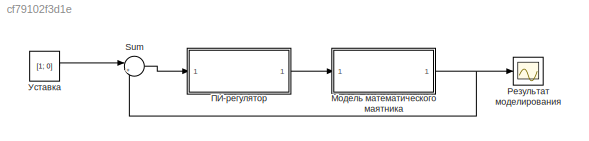
MODEL slx_cf79102f3d1e
KIND model
CONFIG AbsTol = auto
CONFIG EnableMultiTasking = off
CONFIG FixedStep = auto
CONFIG MaxStep = auto
CONFIG MinStep = auto
CONFIG RelTol = 1e-3
CONFIG SampleTimeConstraint = Unconstrained
CONFIG SolverName = VariableStepAuto
CONFIG StartTime = 0.0
CONFIG StopTime = 15.0
BLOCK [Sum] Sum
  Inputs = |+-
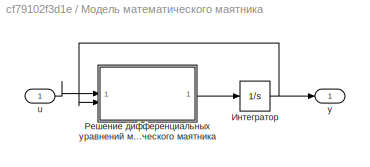
BLOCK [SubSystem] Модель математического маятника
BLOCK [Inport] Модель математического маятника/u
BLOCK [Outport] Модель математического маятника/y
BLOCK [Integrator] Модель математического маятника/Интегратор
  InitialCondition = [-2; 0]
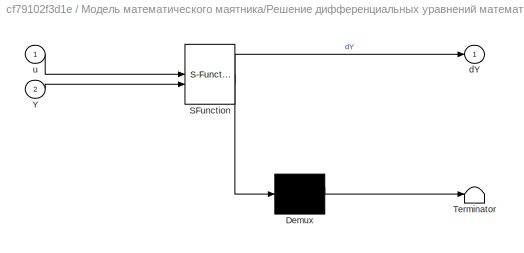
BLOCK [SubSystem] Модель математического маятника/Решение дифференциальных уравнений математического маятника
  ErrorFcn = Stateflow.Translate.translate
  PermitHierarchicalResolution = ExplicitOnly
  SFBlockType = MATLAB Function
  TreatAsAtomicUnit = on
BLOCK [Demux] Модель математического маятника/Решение дифференциальных уравнений математического маятника/ Demux 
  Outputs = 1
BLOCK [S-Function] Модель математического маятника/Решение дифференциальных уравнений математического маятника/ SFunction 
  EnableBusSupport = on
  FunctionName = sf_sfun
  PortCounts = [2 2]
  SFcnIsStateOwnerBlock = off
  SFunctionDeploymentMode = off
  Tag = Stateflow S-Function 2
BLOCK [Terminator] Модель математического маятника/Решение дифференциальных уравнений математического маятника/ Terminator 
BLOCK [Inport] Модель математического маятника/Решение дифференциальных уравнений математического маятника/Y
  Port = 2
BLOCK [Outport] Модель математического маятника/Решение дифференциальных уравнений математического маятника/dY
BLOCK [Inport] Модель математического маятника/Решение дифференциальных уравнений математического маятника/u
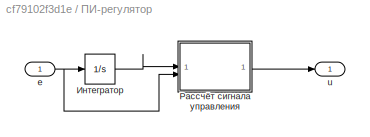
BLOCK [SubSystem] ПИ-регулятор
BLOCK [Inport] ПИ-регулятор/e
BLOCK [Outport] ПИ-регулятор/u
BLOCK [Integrator] ПИ-регулятор/Интегратор
  InitialCondition = [-2;0]
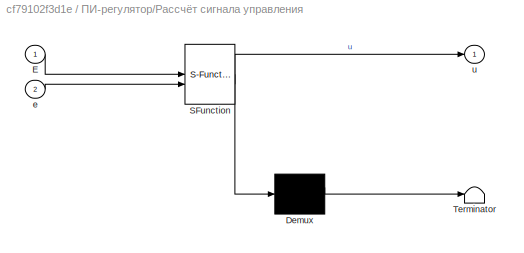
BLOCK [SubSystem] ПИ-регулятор/Рассчёт сигнала управления
  ErrorFcn = Stateflow.Translate.translate
  PermitHierarchicalResolution = ExplicitOnly
  SFBlockType = MATLAB Function
  TreatAsAtomicUnit = on
BLOCK [Demux] ПИ-регулятор/Рассчёт сигнала управления/ Demux 
  Outputs = 1
BLOCK [S-Function] ПИ-регулятор/Рассчёт сигнала управления/ SFunction 
  EnableBusSupport = on
  FunctionName = sf_sfun
  PortCounts = [2 2]
  SFcnIsStateOwnerBlock = off
  SFunctionDeploymentMode = off
  Tag = Stateflow S-Function 1
BLOCK [Terminator] ПИ-регулятор/Рассчёт сигнала управления/ Terminator 
BLOCK [Inport] ПИ-регулятор/Рассчёт сигнала управления/E
BLOCK [Inport] ПИ-регулятор/Рассчёт сигнала управления/e
  Port = 2
BLOCK [Outport] ПИ-регулятор/Рассчёт сигнала управления/u
BLOCK [Scope] Результат моделирования
  Floating = off
  NumInputPorts = 1
  ScopeSpecificationString = Simulink.scopes.TimeScopeBlockCfg('CurrentConfiguration', extmgr.ConfigurationSet(extmgr.Configuration('Core','General UI',true,'FigureColor',[1 1 1]),extmgr.Configuration('Core','Source UI',true),extmgr.Configuration('Sources','WiredSimulink',true),extmgr.Configuration('Visuals','Time Domain',true,'SerializedDisplays',{struct('MinYLimReal','-2.85942','MaxYLimReal','2.31698','YLabelReal','','MinYL...<+2335ch>
BLOCK [Constant] Уставка
  Value = [1; 0]
LINE Sum:1 -> ПИ-регулятор:1
LINE Модель математического маятника/u:1 -> Модель математического маятника/Решение дифференциальных уравнений математического маятника:1
NET Модель математического маятника/Интегратор:1 -> Модель математического маятника/y:1, Модель математического маятника/Решение дифференциальных уравнений математического маятника:2
LINE Модель математического маятника/Решение дифференциальных уравнений математического маятника:1 -> Модель математического маятника/Интегратор:1
NET Модель математического маятника:1 -> Sum:2, Результат моделирования:1
NET ПИ-регулятор/e:1 -> ПИ-регулятор/Интегратор:1, ПИ-регулятор/Рассчёт сигнала управления:2
LINE ПИ-регулятор/Интегратор:1 -> ПИ-регулятор/Рассчёт сигнала управления:1
LINE ПИ-регулятор/Рассчёт сигнала управления:1 -> ПИ-регулятор/u:1
LINE ПИ-регулятор:1 -> Модель математического маятника:1
LINE Уставка:1 -> Sum:1
note: NET lines group one-source signal fan-out (src -> all destinations, sorted); 1:1 wires keep LINE
CHART Модель математического маятника/Решение дифференциальных 
уравнений математического
маятника states=1 transitions=1
  STATE_LABEL 'eML_blk_kernel()'
  STATE_LABEL 'SCRIPT:\nfunction dY = koshi(u, Y)\ng = 9.81;\nl = 0.1;\nm= 0.5;\nb = 1;\nc = 1;\n\ndY = zeros(length(Y), 1);\ndY(1) = Y(2);\ndY(2) = -g/l * sin(Y(1)) - b/(m*l*l) * dY(1) ...\n    - c/(m*l*l) * Y(1) - u/(m*l*l);\nend'
CHART ПИ-регулятор/Рассчёт сигнала
 управления states=1 transitions=1
  STATE_LABEL 'eML_blk_kernel()'
  STATE_LABEL 'SCRIPT:\nfunction u = control(E, e)\nKp = 0.4;\nKi = -0.654;\nu = Kp * e(1) + Kp * e(2) + Ki * E(1) + Ki * E(2);\nend'
CHART  states=0 transitions=0
CHART  states=0 transitions=0
